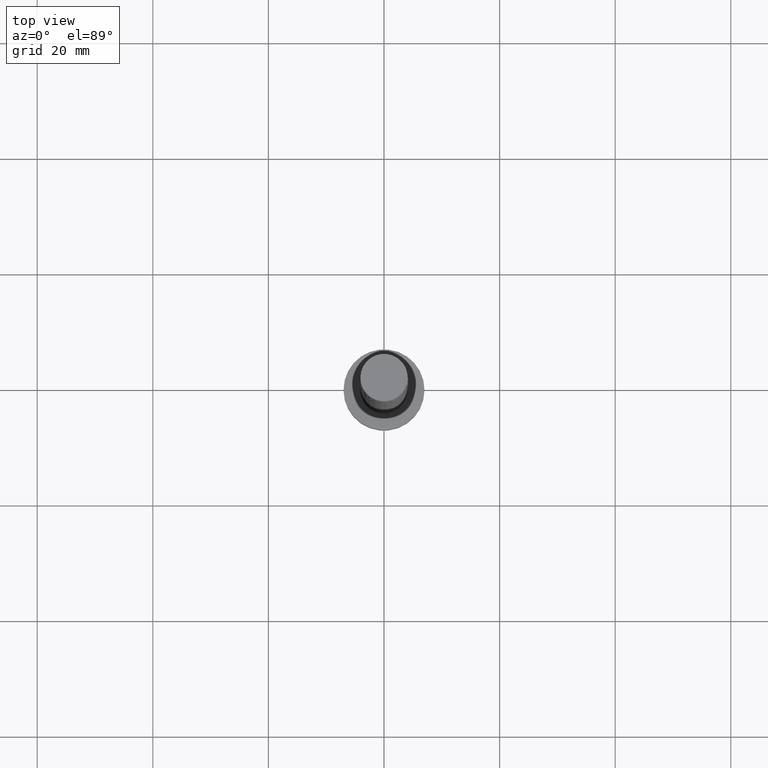
[diagram: clean part render]
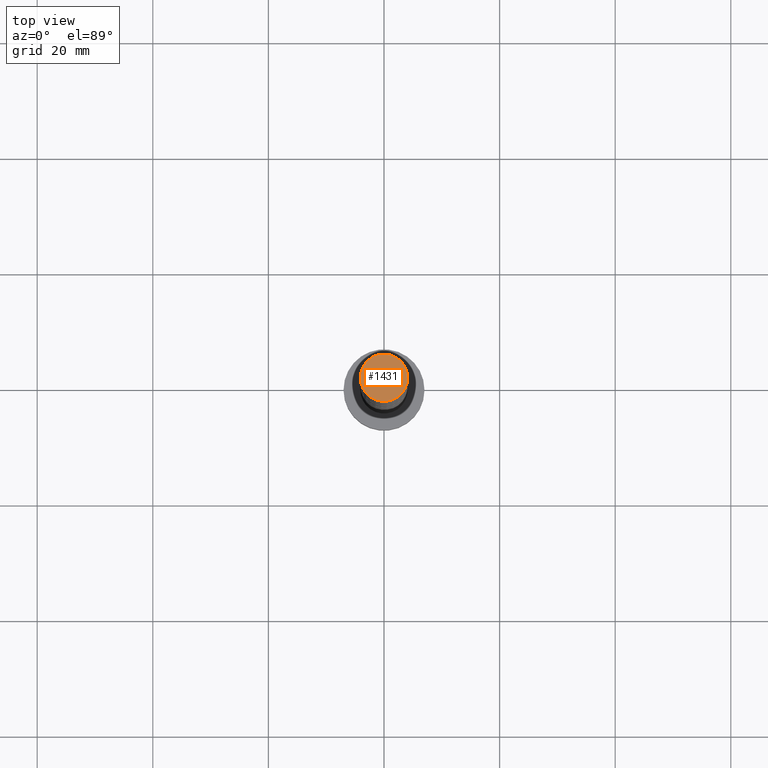
[diagram: same view with one face highlighted and labeled with its STEP entity id]
A machine part, top view. The second image highlights one B-rep face of the part: STEP entity #1431.
In plain terms, the highlighted planar face has unit normal (0, 0, 1).
Its self-contained STEP definition (entity closure, byte-faithful):
#78 = AXIS2_PLACEMENT_3D ( 'NONE', #939, #712, #453 ) ;
#295 = DIRECTION ( 'NONE',  ( 1.000000000000000000, 0.000000000000000000, 0.000000000000000000 ) ) ;
#379 = CIRCLE ( 'NONE', #78, 4.099999999999999645 ) ;
#381 = AXIS2_PLACEMENT_3D ( 'NONE', #873, #1349, #989 ) ;
#390 = FACE_OUTER_BOUND ( 'NONE', #1052, .T. ) ;
#453 = DIRECTION ( 'NONE',  ( 1.000000000000000000, 0.000000000000000000, 0.000000000000000000 ) ) ;
#491 = PLANE ( 'NONE',  #381 ) ;
#522 = EDGE_CURVE ( 'NONE', #993, #1499, #1117, .T. ) ;
#618 = CARTESIAN_POINT ( 'NONE',  ( 4.099999999999999645, 5.021051876504147385E-16, 125.0000000000000000 ) ) ;
#632 = AXIS2_PLACEMENT_3D ( 'NONE', #1288, #795, #295 ) ;
#712 = DIRECTION ( 'NONE',  ( 0.000000000000000000, 0.000000000000000000, 1.000000000000000000 ) ) ;
#787 = ORIENTED_EDGE ( 'NONE', *, *, #805, .T. ) ;
#795 = DIRECTION ( 'NONE',  ( 0.000000000000000000, 0.000000000000000000, 1.000000000000000000 ) ) ;
#805 = EDGE_CURVE ( 'NONE', #1499, #993, #379, .T. ) ;
#873 = CARTESIAN_POINT ( 'NONE',  ( 0.000000000000000000, 0.000000000000000000, 125.0000000000000000 ) ) ;
#939 = CARTESIAN_POINT ( 'NONE',  ( 0.000000000000000000, 0.000000000000000000, 125.0000000000000000 ) ) ;
#989 = DIRECTION ( 'NONE',  ( 1.000000000000000000, 0.000000000000000000, -0.000000000000000000 ) ) ;
#993 = VERTEX_POINT ( 'NONE', #1516 ) ;
#1045 = ORIENTED_EDGE ( 'NONE', *, *, #522, .T. ) ;
#1052 = EDGE_LOOP ( 'NONE', ( #1045, #787 ) ) ;
#1117 = CIRCLE ( 'NONE', #632, 4.099999999999999645 ) ;
#1288 = CARTESIAN_POINT ( 'NONE',  ( 0.000000000000000000, 0.000000000000000000, 125.0000000000000000 ) ) ;
#1349 = DIRECTION ( 'NONE',  ( 0.000000000000000000, 0.000000000000000000, 1.000000000000000000 ) ) ;
#1431 = ADVANCED_FACE ( 'NONE', ( #390 ), #491, .T. ) ;
#1499 = VERTEX_POINT ( 'NONE', #618 ) ;
#1516 = CARTESIAN_POINT ( 'NONE',  ( -4.099999999999999645, 0.000000000000000000, 125.0000000000000000 ) ) ;